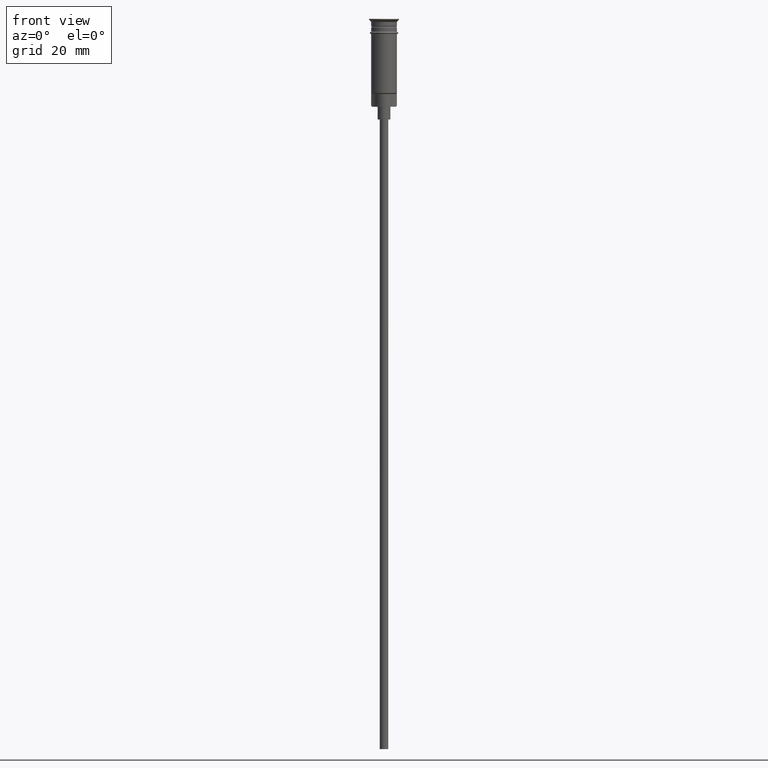
[diagram: clean part render]
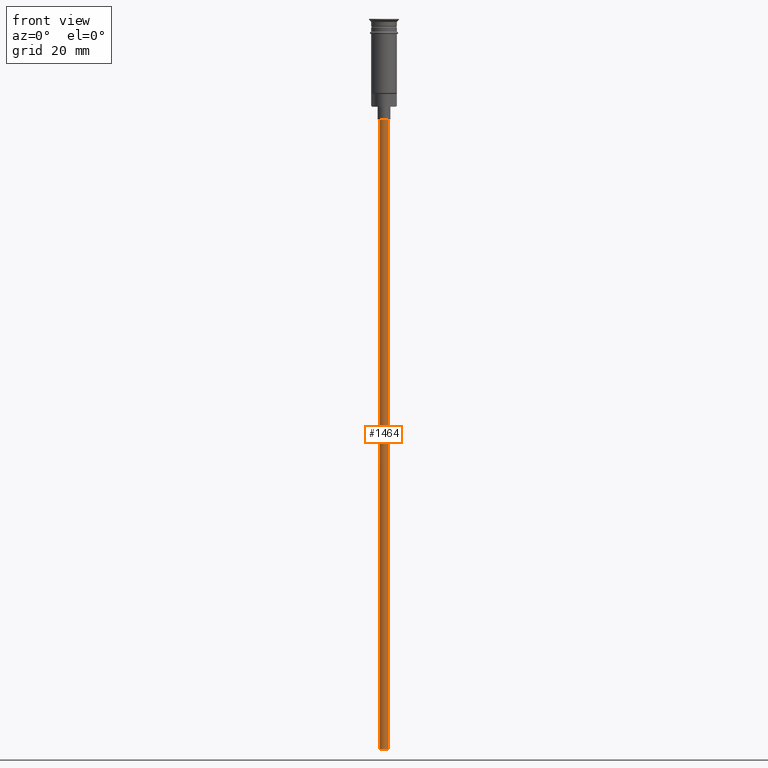
[diagram: same view with one face highlighted and labeled with its STEP entity id]
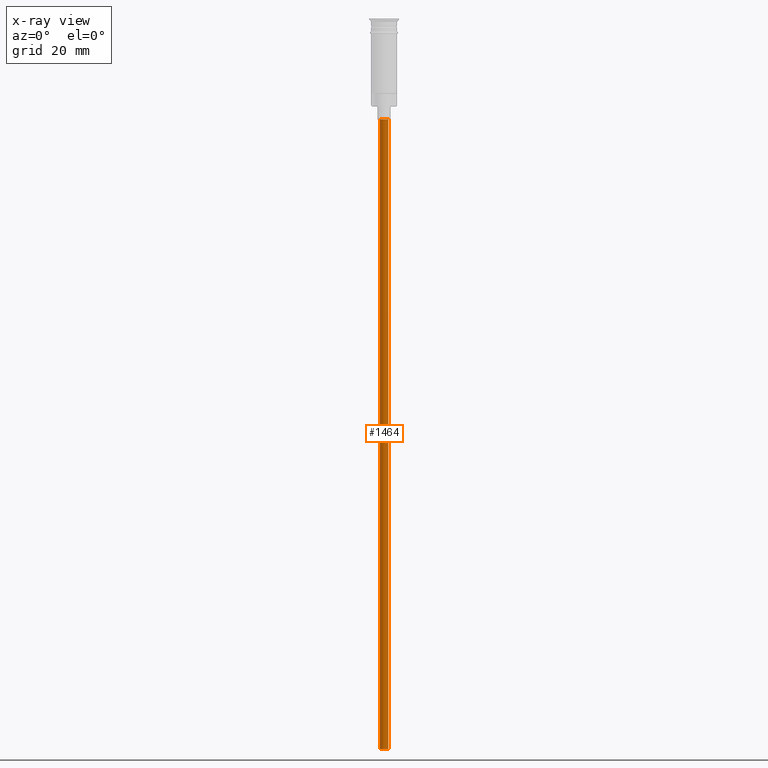
[diagram: x-ray of the same camera — body ghosted, the highlighted face saturated]
A machine part, front view. The second image highlights one B-rep face of the part: STEP entity #1464.
The next image is the same camera in x-ray: the body ghosted, the highlighted face saturated — about 0% of this face is hidden behind the body in this view.
In plain terms, the highlighted cylindrical surface (edge-blend (fillet) strip) has radius 1 mm, axis along (-0, -0, 1).
Its self-contained STEP definition (entity closure, byte-faithful):
#55 = ORIENTED_EDGE ( 'NONE', *, *, #1276, .T. ) ;
#56 = CARTESIAN_POINT ( 'NONE',  ( -0.9999999999999997780, 1.224646799147352961E-16, -23.50000000000000000 ) ) ;
#85 = ORIENTED_EDGE ( 'NONE', *, *, #101, .F. ) ;
#100 = FACE_OUTER_BOUND ( 'NONE', #1469, .T. ) ;
#101 = EDGE_CURVE ( 'NONE', #1580, #1461, #1356, .T. ) ;
#110 = AXIS2_PLACEMENT_3D ( 'NONE', #834, #588, #1321 ) ;
#217 = CARTESIAN_POINT ( 'NONE',  ( -0.9999999999999997780, 1.224646799147352961E-16, -170.4999999999999716 ) ) ;
#230 = CYLINDRICAL_SURFACE ( 'NONE', #110, 0.9999999999999997780 ) ;
#282 = ORIENTED_EDGE ( 'NONE', *, *, #736, .T. ) ;
#434 = CARTESIAN_POINT ( 'NONE',  ( -0.9999999999999997780, 1.224646799147352961E-16, -170.4999999999999716 ) ) ;
#440 = CIRCLE ( 'NONE', #622, 0.9999999999999997780 ) ;
#504 = VERTEX_POINT ( 'NONE', #1056 ) ;
#564 = EDGE_CURVE ( 'NONE', #1461, #957, #664, .T. ) ;
#583 = DIRECTION ( 'NONE',  ( -1.000000000000000000, 0.000000000000000000, 0.000000000000000000 ) ) ;
#588 = DIRECTION ( 'NONE',  ( -0.000000000000000000, -0.000000000000000000, 1.000000000000000000 ) ) ;
#622 = AXIS2_PLACEMENT_3D ( 'NONE', #709, #1188, #583 ) ;
#624 = VECTOR ( 'NONE', #1218, 1000.000000000000000 ) ;
#664 = LINE ( 'NONE', #434, #1203 ) ;
#677 = AXIS2_PLACEMENT_3D ( 'NONE', #678, #1262, #1036 ) ;
#678 = CARTESIAN_POINT ( 'NONE',  ( 0.000000000000000000, 0.000000000000000000, -170.4999999999999716 ) ) ;
#709 = CARTESIAN_POINT ( 'NONE',  ( 0.000000000000000000, 0.000000000000000000, -23.50000000000000000 ) ) ;
#736 = EDGE_CURVE ( 'NONE', #504, #957, #440, .T. ) ;
#834 = CARTESIAN_POINT ( 'NONE',  ( 0.000000000000000000, 0.000000000000000000, -170.4999999999999716 ) ) ;
#859 = CARTESIAN_POINT ( 'NONE',  ( 0.9999999999999997780, 0.000000000000000000, -170.4999999999999716 ) ) ;
#863 = ORIENTED_EDGE ( 'NONE', *, *, #564, .F. ) ;
#929 = CARTESIAN_POINT ( 'NONE',  ( 0.9999999999999997780, 0.000000000000000000, -170.4999999999999716 ) ) ;
#957 = VERTEX_POINT ( 'NONE', #56 ) ;
#1036 = DIRECTION ( 'NONE',  ( -1.000000000000000000, 0.000000000000000000, 0.000000000000000000 ) ) ;
#1056 = CARTESIAN_POINT ( 'NONE',  ( 0.9999999999999997780, 0.000000000000000000, -23.50000000000000000 ) ) ;
#1111 = LINE ( 'NONE', #859, #624 ) ;
#1188 = DIRECTION ( 'NONE',  ( 0.000000000000000000, 0.000000000000000000, -1.000000000000000000 ) ) ;
#1203 = VECTOR ( 'NONE', #1282, 1000.000000000000000 ) ;
#1218 = DIRECTION ( 'NONE',  ( -0.000000000000000000, -0.000000000000000000, 1.000000000000000000 ) ) ;
#1262 = DIRECTION ( 'NONE',  ( 0.000000000000000000, 0.000000000000000000, -1.000000000000000000 ) ) ;
#1276 = EDGE_CURVE ( 'NONE', #1580, #504, #1111, .T. ) ;
#1282 = DIRECTION ( 'NONE',  ( -0.000000000000000000, -0.000000000000000000, 1.000000000000000000 ) ) ;
#1321 = DIRECTION ( 'NONE',  ( 1.000000000000000000, 0.000000000000000000, 0.000000000000000000 ) ) ;
#1356 = CIRCLE ( 'NONE', #677, 0.9999999999999997780 ) ;
#1461 = VERTEX_POINT ( 'NONE', #217 ) ;
#1464 = ADVANCED_FACE ( 'NONE', ( #100 ), #230, .T. ) ;
#1469 = EDGE_LOOP ( 'NONE', ( #863, #85, #55, #282 ) ) ;
#1580 = VERTEX_POINT ( 'NONE', #929 ) ;